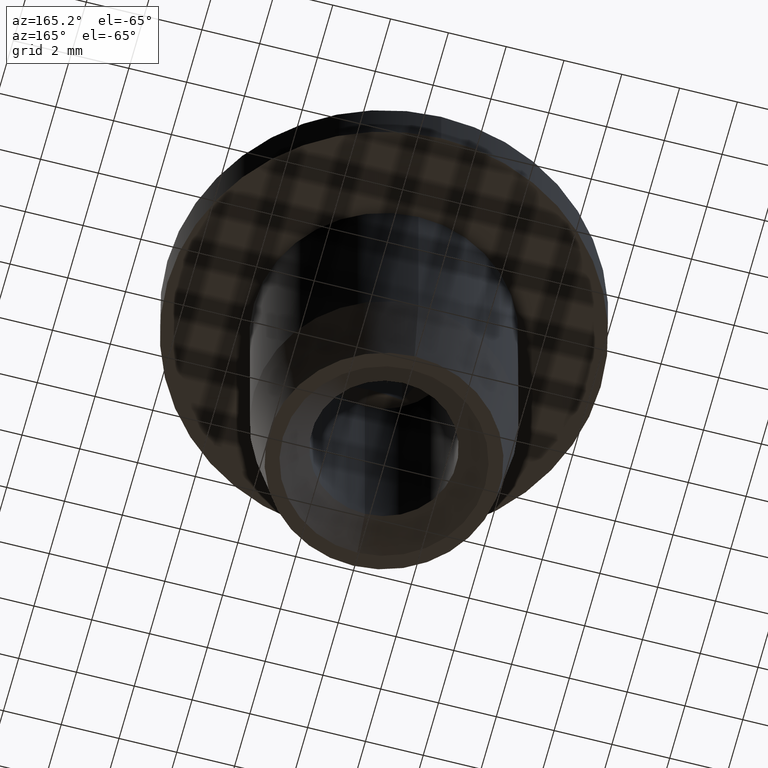
[diagram: clean part render]
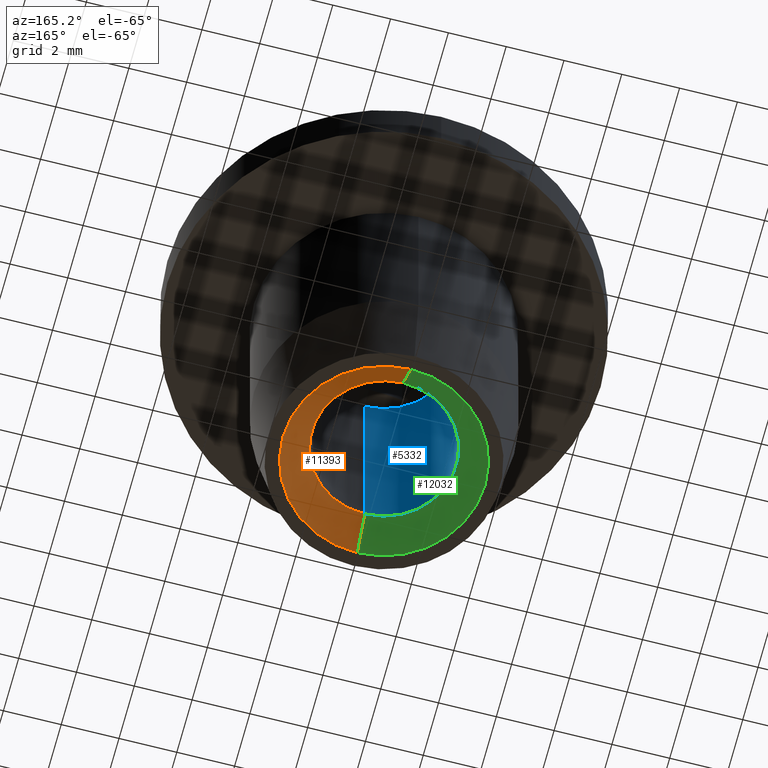
[diagram: same view with three faces highlighted in distinct colors, each labeled with its STEP entity id]
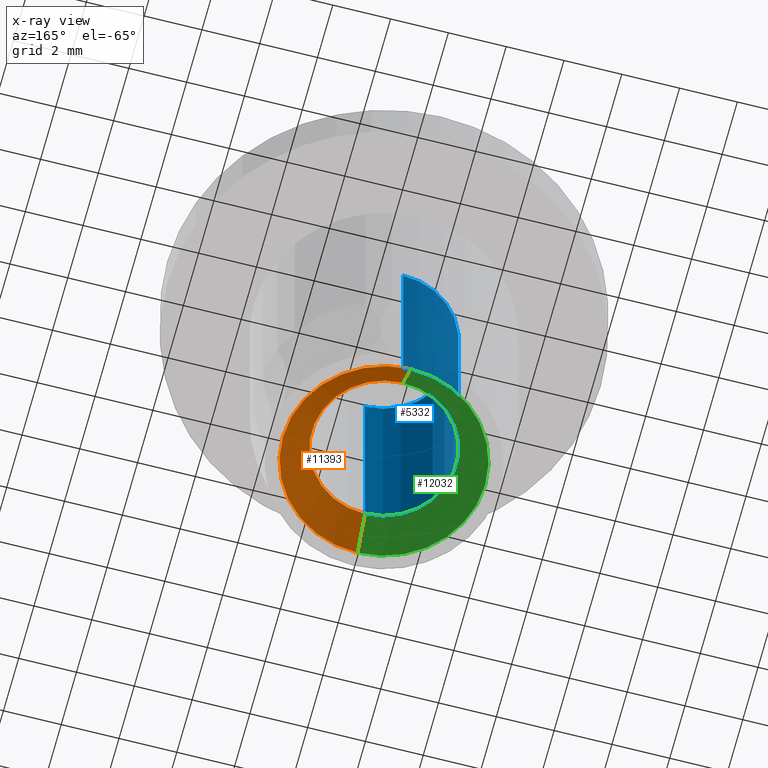
[diagram: x-ray of the same camera — body ghosted, the three highlighted faces saturated]
A machine part, auxiliary view with three faces highlighted in distinct colors.
The next image is the same camera in x-ray (body ghosted, the three faces saturated) — at least one of them is partly hidden behind the body in this view.
Their STEP definitions:

[orange] entity #11393 — the highlighted conical surface has half-angle 45 deg.
#677 = CONICAL_SURFACE ( 'NONE', #7889, 2.499999999999997800, 0.7853981633974507200 ) ;
#915 = DIRECTION ( 'NONE',  ( 8.659560562354953800E-017, -0.7071067811865489100, -0.7071067811865462400 ) ) ;
#1320 = CARTESIAN_POINT ( 'NONE',  ( 0.0000000000000000000, 1.708440036707757100E-015, -5.099999999999999600 ) ) ;
#2087 = EDGE_LOOP ( 'NONE', ( #2492, #8914, #6984, #8286 ) ) ;
#2172 = EDGE_CURVE ( 'NONE', #12272, #3559, #10783, .T. ) ;
#2402 = LINE ( 'NONE', #9809, #5977 ) ;
#2492 = ORIENTED_EDGE ( 'NONE', *, *, #14923, .F. ) ;
#3559 = VERTEX_POINT ( 'NONE', #9428 ) ;
#4140 = AXIS2_PLACEMENT_3D ( 'NONE', #6216, #12513, #16279 ) ;
#5078 = CARTESIAN_POINT ( 'NONE',  ( 0.0000000000000000000, 2.499999999999999600, -5.099999999999998800 ) ) ;
#5206 = EDGE_CURVE ( 'NONE', #12272, #5605, #11975, .T. ) ;
#5605 = VERTEX_POINT ( 'NONE', #7211 ) ;
#5756 = EDGE_CURVE ( 'NONE', #14329, #3559, #10859, .T. ) ;
#5794 = FACE_OUTER_BOUND ( 'NONE', #2087, .T. ) ;
#5977 = VECTOR ( 'NONE', #915, 1000.000000000000000 ) ;
#6085 = DIRECTION ( 'NONE',  ( 0.0000000000000000000, 4.060685641161864900E-016, -1.000000000000000000 ) ) ;
#6216 = CARTESIAN_POINT ( 'NONE',  ( 0.0000000000000000000, 2.114508600823944300E-015, -6.100000000000001400 ) ) ;
#6984 = ORIENTED_EDGE ( 'NONE', *, *, #2172, .T. ) ;
#6993 = AXIS2_PLACEMENT_3D ( 'NONE', #12162, #6085, #9630 ) ;
#7211 = CARTESIAN_POINT ( 'NONE',  ( 3.061616997868380700E-016, -2.499999999999996000, -5.100000000000000500 ) ) ;
#7889 = AXIS2_PLACEMENT_3D ( 'NONE', #1320, #10201, #11896 ) ;
#8286 = ORIENTED_EDGE ( 'NONE', *, *, #5756, .F. ) ;
#8914 = ORIENTED_EDGE ( 'NONE', *, *, #5206, .F. ) ;
#9428 = CARTESIAN_POINT ( 'NONE',  ( 0.0000000000000000000, 3.500000000000007100, -6.100000000000000500 ) ) ;
#9630 = DIRECTION ( 'NONE',  ( 0.0000000000000000000, 1.000000000000000000, 3.469446951953617100E-016 ) ) ;
#9809 = CARTESIAN_POINT ( 'NONE',  ( 3.061616997868380700E-016, -2.499999999999996000, -5.100000000000000500 ) ) ;
#10201 = DIRECTION ( 'NONE',  ( 0.0000000000000000000, 4.060685641161864900E-016, -1.000000000000000000 ) ) ;
#10351 = CARTESIAN_POINT ( 'NONE',  ( 4.286263797015741500E-016, -3.500000000000001800, -6.100000000000002300 ) ) ;
#10783 = LINE ( 'NONE', #10896, #13164 ) ;
#10859 = CIRCLE ( 'NONE', #4140, 3.500000000000004400 ) ;
#10896 = CARTESIAN_POINT ( 'NONE',  ( 0.0000000000000000000, 2.499999999999999600, -5.099999999999998800 ) ) ;
#11393 = ADVANCED_FACE ( 'NONE', ( #5794 ), #677, .F. ) ;
#11896 = DIRECTION ( 'NONE',  ( 0.0000000000000000000, 1.000000000000000000, 3.469446951953617100E-016 ) ) ;
#11975 = CIRCLE ( 'NONE', #6993, 2.499999999999997800 ) ;
#12162 = CARTESIAN_POINT ( 'NONE',  ( 0.0000000000000000000, 1.708440036707757300E-015, -5.099999999999999600 ) ) ;
#12272 = VERTEX_POINT ( 'NONE', #5078 ) ;
#12513 = DIRECTION ( 'NONE',  ( 0.0000000000000000000, -3.466407542334334500E-016, 1.000000000000000000 ) ) ;
#13164 = VECTOR ( 'NONE', #13712, 1000.000000000000000 ) ;
#13712 = DIRECTION ( 'NONE',  ( 0.0000000000000000000, 0.7071067811865495700, -0.7071067811865454600 ) ) ;
#14329 = VERTEX_POINT ( 'NONE', #10351 ) ;
#14923 = EDGE_CURVE ( 'NONE', #5605, #14329, #2402, .T. ) ;
#16279 = DIRECTION ( 'NONE',  ( 0.0000000000000000000, 1.000000000000000000, 2.478176394252578200E-016 ) ) ;

[blue] entity #5332 — the highlighted cylindrical surface (partial cylindrical patch) has radius 2.5 mm, axis along (-0, 0, -1).
#731 = EDGE_LOOP ( 'NONE', ( #9556, #4941, #12944, #747 ) ) ;
#747 = ORIENTED_EDGE ( 'NONE', *, *, #14594, .F. ) ;
#1061 = VECTOR ( 'NONE', #6477, 1000.000000000000000 ) ;
#1172 = DIRECTION ( 'NONE',  ( -0.0000000000000000000, 4.060685641161864400E-016, -1.000000000000000000 ) ) ;
#1573 = AXIS2_PLACEMENT_3D ( 'NONE', #8952, #1172, #5020 ) ;
#1684 = DIRECTION ( 'NONE',  ( 0.0000000000000000000, 1.000000000000000000, 3.469446951953617100E-016 ) ) ;
#3445 = FACE_OUTER_BOUND ( 'NONE', #731, .T. ) ;
#3976 = CARTESIAN_POINT ( 'NONE',  ( 3.061616997868380700E-016, -2.499999999999995600, -6.100000000000002300 ) ) ;
#4473 = EDGE_CURVE ( 'NONE', #14602, #5605, #5213, .T. ) ;
#4941 = ORIENTED_EDGE ( 'NONE', *, *, #4473, .T. ) ;
#5020 = DIRECTION ( 'NONE',  ( 0.0000000000000000000, 1.000000000000000000, 3.469446951953618600E-016 ) ) ;
#5038 = VERTEX_POINT ( 'NONE', #14343 ) ;
#5078 = CARTESIAN_POINT ( 'NONE',  ( 0.0000000000000000000, 2.499999999999999600, -5.099999999999998800 ) ) ;
#5213 = LINE ( 'NONE', #3976, #1061 ) ;
#5328 = AXIS2_PLACEMENT_3D ( 'NONE', #10402, #15550, #1684 ) ;
#5332 = ADVANCED_FACE ( 'NONE', ( #3445 ), #12574, .F. ) ;
#5408 = LINE ( 'NONE', #14915, #9757 ) ;
#5451 = DIRECTION ( 'NONE',  ( -0.0000000000000000000, 4.060685641161864400E-016, -1.000000000000000000 ) ) ;
#5605 = VERTEX_POINT ( 'NONE', #7211 ) ;
#6278 = EDGE_CURVE ( 'NONE', #14602, #5038, #14017, .T. ) ;
#6477 = DIRECTION ( 'NONE',  ( -0.0000000000000000000, 4.060685641161864400E-016, -1.000000000000000000 ) ) ;
#6623 = DIRECTION ( 'NONE',  ( 0.0000000000000000000, 1.000000000000000000, 3.469446951953617100E-016 ) ) ;
#7211 = CARTESIAN_POINT ( 'NONE',  ( 3.061616997868380700E-016, -2.499999999999996000, -5.100000000000000500 ) ) ;
#8672 = CARTESIAN_POINT ( 'NONE',  ( 3.061616997868379700E-016, -2.499999999999999100, 3.399999999999997700 ) ) ;
#8952 = CARTESIAN_POINT ( 'NONE',  ( 0.0000000000000000000, -1.743142758279826900E-015, 3.399999999999998600 ) ) ;
#9556 = ORIENTED_EDGE ( 'NONE', *, *, #6278, .F. ) ;
#9757 = VECTOR ( 'NONE', #11103, 1000.000000000000000 ) ;
#10352 = EDGE_CURVE ( 'NONE', #5605, #12272, #13500, .T. ) ;
#10402 = CARTESIAN_POINT ( 'NONE',  ( 0.0000000000000000000, 1.708440036707757300E-015, -5.099999999999999600 ) ) ;
#11103 = DIRECTION ( 'NONE',  ( -0.0000000000000000000, 4.060685641161864400E-016, -1.000000000000000000 ) ) ;
#12272 = VERTEX_POINT ( 'NONE', #5078 ) ;
#12574 = CYLINDRICAL_SURFACE ( 'NONE', #13464, 2.499999999999997800 ) ;
#12944 = ORIENTED_EDGE ( 'NONE', *, *, #10352, .T. ) ;
#13464 = AXIS2_PLACEMENT_3D ( 'NONE', #14198, #5451, #6623 ) ;
#13500 = CIRCLE ( 'NONE', #5328, 2.499999999999997800 ) ;
#14017 = CIRCLE ( 'NONE', #1573, 2.499999999999996900 ) ;
#14198 = CARTESIAN_POINT ( 'NONE',  ( 0.0000000000000000000, 2.114508600823944300E-015, -6.100000000000001400 ) ) ;
#14343 = CARTESIAN_POINT ( 'NONE',  ( 0.0000000000000000000, 2.499999999999994700, 3.399999999999999500 ) ) ;
#14594 = EDGE_CURVE ( 'NONE', #5038, #12272, #5408, .T. ) ;
#14602 = VERTEX_POINT ( 'NONE', #8672 ) ;
#14915 = CARTESIAN_POINT ( 'NONE',  ( 0.0000000000000000000, 2.500000000000000000, -6.100000000000000500 ) ) ;
#15550 = DIRECTION ( 'NONE',  ( 0.0000000000000000000, 4.060685641161864900E-016, -1.000000000000000000 ) ) ;

[green] entity #12032 — the highlighted conical surface has half-angle 45 deg.
#807 = ORIENTED_EDGE ( 'NONE', *, *, #10352, .F. ) ;
#915 = DIRECTION ( 'NONE',  ( 8.659560562354953800E-017, -0.7071067811865489100, -0.7071067811865462400 ) ) ;
#1684 = DIRECTION ( 'NONE',  ( 0.0000000000000000000, 1.000000000000000000, 3.469446951953617100E-016 ) ) ;
#2172 = EDGE_CURVE ( 'NONE', #12272, #3559, #10783, .T. ) ;
#2402 = LINE ( 'NONE', #9809, #5977 ) ;
#3559 = VERTEX_POINT ( 'NONE', #9428 ) ;
#5078 = CARTESIAN_POINT ( 'NONE',  ( 0.0000000000000000000, 2.499999999999999600, -5.099999999999998800 ) ) ;
#5102 = DIRECTION ( 'NONE',  ( 0.0000000000000000000, -3.466407542334334500E-016, 1.000000000000000000 ) ) ;
#5131 = ORIENTED_EDGE ( 'NONE', *, *, #14923, .T. ) ;
#5215 = DIRECTION ( 'NONE',  ( 0.0000000000000000000, 1.000000000000000000, 2.478176394252578200E-016 ) ) ;
#5328 = AXIS2_PLACEMENT_3D ( 'NONE', #10402, #15550, #1684 ) ;
#5605 = VERTEX_POINT ( 'NONE', #7211 ) ;
#5734 = AXIS2_PLACEMENT_3D ( 'NONE', #15409, #5102, #5215 ) ;
#5977 = VECTOR ( 'NONE', #915, 1000.000000000000000 ) ;
#6457 = FACE_OUTER_BOUND ( 'NONE', #8743, .T. ) ;
#7040 = CONICAL_SURFACE ( 'NONE', #8317, 2.499999999999997800, 0.7853981633974507200 ) ;
#7211 = CARTESIAN_POINT ( 'NONE',  ( 3.061616997868380700E-016, -2.499999999999996000, -5.100000000000000500 ) ) ;
#7555 = DIRECTION ( 'NONE',  ( 0.0000000000000000000, 4.060685641161864900E-016, -1.000000000000000000 ) ) ;
#7920 = CIRCLE ( 'NONE', #5734, 3.500000000000004400 ) ;
#8317 = AXIS2_PLACEMENT_3D ( 'NONE', #9987, #7555, #11414 ) ;
#8413 = EDGE_CURVE ( 'NONE', #3559, #14329, #7920, .T. ) ;
#8743 = EDGE_LOOP ( 'NONE', ( #807, #5131, #11612, #11222 ) ) ;
#9428 = CARTESIAN_POINT ( 'NONE',  ( 0.0000000000000000000, 3.500000000000007100, -6.100000000000000500 ) ) ;
#9809 = CARTESIAN_POINT ( 'NONE',  ( 3.061616997868380700E-016, -2.499999999999996000, -5.100000000000000500 ) ) ;
#9987 = CARTESIAN_POINT ( 'NONE',  ( 0.0000000000000000000, 1.708440036707757100E-015, -5.099999999999999600 ) ) ;
#10351 = CARTESIAN_POINT ( 'NONE',  ( 4.286263797015741500E-016, -3.500000000000001800, -6.100000000000002300 ) ) ;
#10352 = EDGE_CURVE ( 'NONE', #5605, #12272, #13500, .T. ) ;
#10402 = CARTESIAN_POINT ( 'NONE',  ( 0.0000000000000000000, 1.708440036707757300E-015, -5.099999999999999600 ) ) ;
#10783 = LINE ( 'NONE', #10896, #13164 ) ;
#10896 = CARTESIAN_POINT ( 'NONE',  ( 0.0000000000000000000, 2.499999999999999600, -5.099999999999998800 ) ) ;
#11222 = ORIENTED_EDGE ( 'NONE', *, *, #2172, .F. ) ;
#11414 = DIRECTION ( 'NONE',  ( 0.0000000000000000000, 1.000000000000000000, 3.469446951953617100E-016 ) ) ;
#11612 = ORIENTED_EDGE ( 'NONE', *, *, #8413, .F. ) ;
#12032 = ADVANCED_FACE ( 'NONE', ( #6457 ), #7040, .F. ) ;
#12272 = VERTEX_POINT ( 'NONE', #5078 ) ;
#13164 = VECTOR ( 'NONE', #13712, 1000.000000000000000 ) ;
#13500 = CIRCLE ( 'NONE', #5328, 2.499999999999997800 ) ;
#13712 = DIRECTION ( 'NONE',  ( 0.0000000000000000000, 0.7071067811865495700, -0.7071067811865454600 ) ) ;
#14329 = VERTEX_POINT ( 'NONE', #10351 ) ;
#14923 = EDGE_CURVE ( 'NONE', #5605, #14329, #2402, .T. ) ;
#15409 = CARTESIAN_POINT ( 'NONE',  ( 0.0000000000000000000, 2.114508600823944300E-015, -6.100000000000001400 ) ) ;
#15550 = DIRECTION ( 'NONE',  ( 0.0000000000000000000, 4.060685641161864900E-016, -1.000000000000000000 ) ) ;